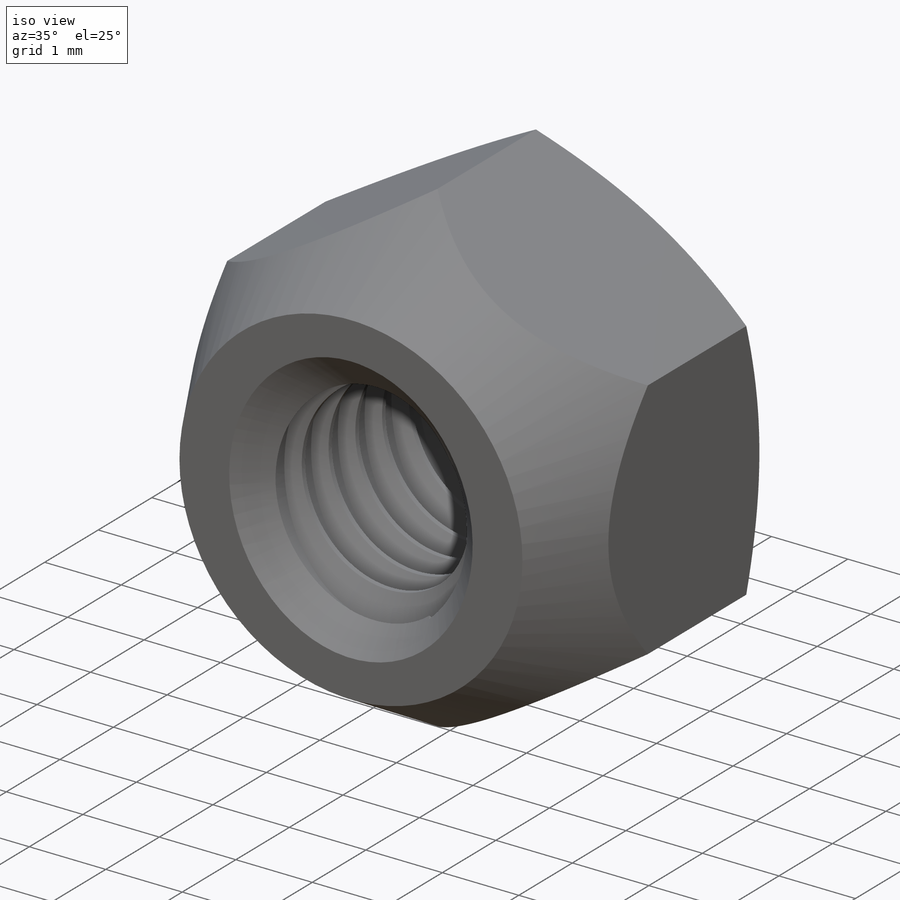
[diagram: iso view]
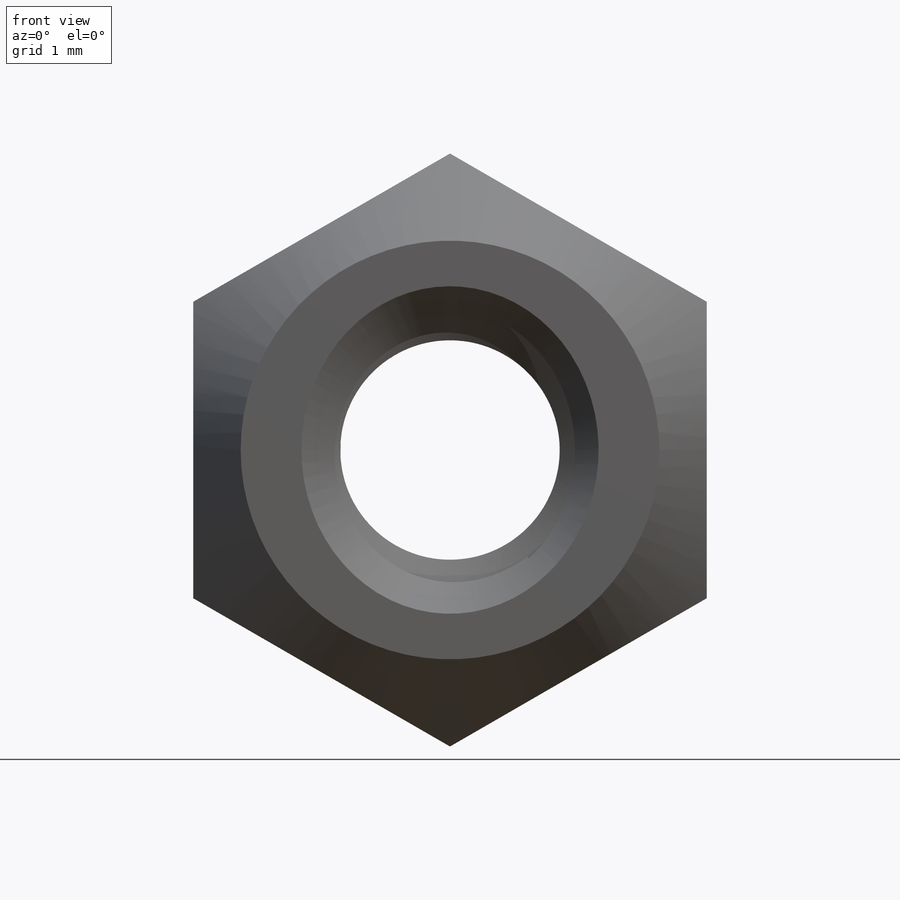
[diagram: front view]
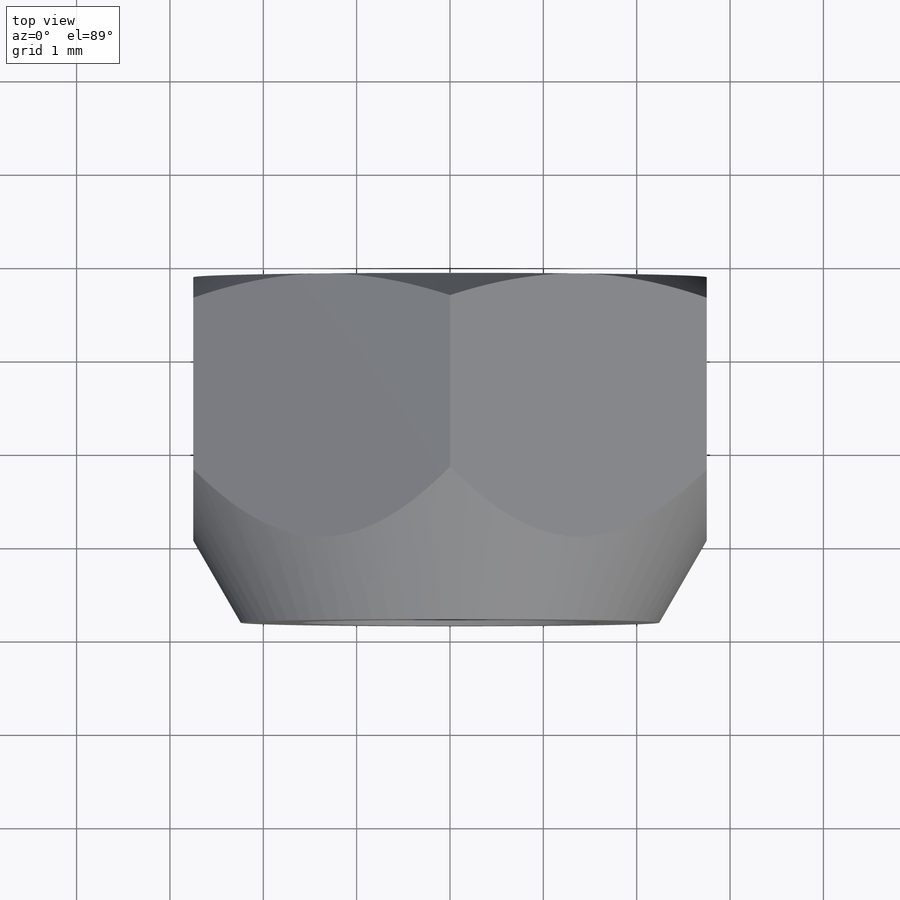
[diagram: top view]
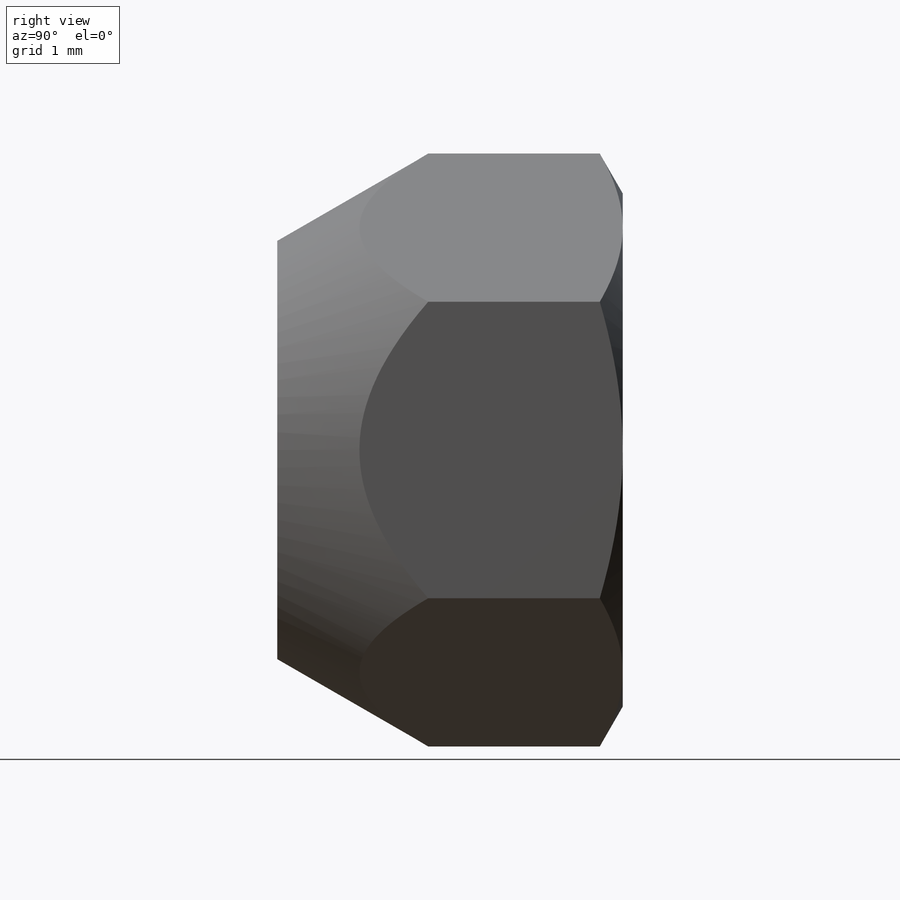
[diagram: right view]
SOLIDWORKS PART (.sldprt)
format: sldprt  version: not decoded by parser v0  size: 691,712 bytes
history: native  units: mm
features: sketch x12, cut_extrude x7, extrude x2, material x1, helix x1, sweep x1 (+13 scaffold rows collapsed)
feature tree (37):
  scaffold x13  (default folders/planes/origin — collapsed)
  material  "Material <not specified>"
  sketch  "Sketch1"  dims[Hex=5.5mm]
  extrude  "Extrude1"  Depth=3.7mm height=3.7mm
  sketch  "Sketch2"  dims[D1=0.508mm]
  cut_extrude  "Cut-Extrude1"  [1 undecoded]
  sketch  "Sketch3"  dims[D1=0.0mm]
  cut_extrude  "Cut-Extrude2"  [1 undecoded]
  sketch  "Sketch4"  dims[Thread OD=3.0mm D1=~0.16238mm D2=0.508mm]
  sketch  "Sketch5"
  sketch  "Sketch7"
  helix  "Helix/Spiral1"  Pitch=3.8mm pitch=0.5mm
  cut_extrude  "Cut-Extrude10"  [1 undecoded]
  sketch  "Sketch9"  dims[c1.D1=0.25mm c1.D2=0.0625mm c1.D3=~0.480493mm c2.D3=60.0deg c2.D4=~0.32476mm]
  sweep  "Sweep1"
  sketch  "Sketch10"  dims[D1=0.0mm]
  cut_extrude  "Cut-Extrude4"  [1 undecoded]
  sketch  "Sketch11"  dims[D1=0.0mm]
  cut_extrude  "Cut-Extrude5"  [1 undecoded]
  sketch  "Sketch16"
  extrude  "Extrude2"  [1 undecoded]
  sketch  "Sketch13"  dims[D1=0.254mm]
  cut_extrude  "Cut-Extrude8"  Depth=0.875mm
  sketch  "Sketch14"  dims[D1=0.0mm]
  cut_extrude  "Cut-Extrude9"  Depth=0.875mm
decode coverage: 13 of 23 modeling features carry decoded parameters
note: ~ marks probable driven/reference dimensions
note: 6 parameter values undecoded
summary: no parameter record found for 6 features
note: suppression state not decoded; provenance and decode notes live in map.json
